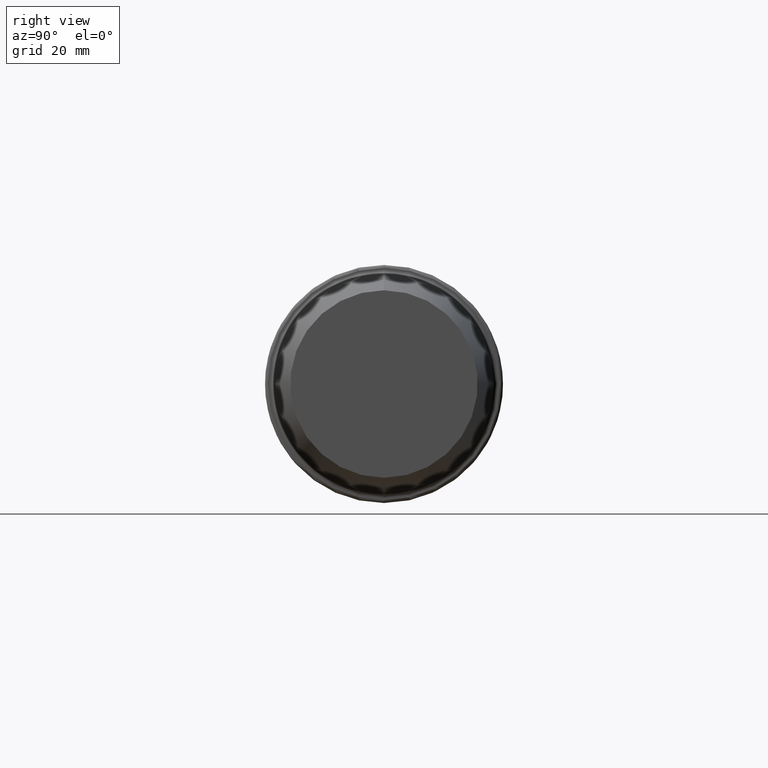
[diagram: clean part render]
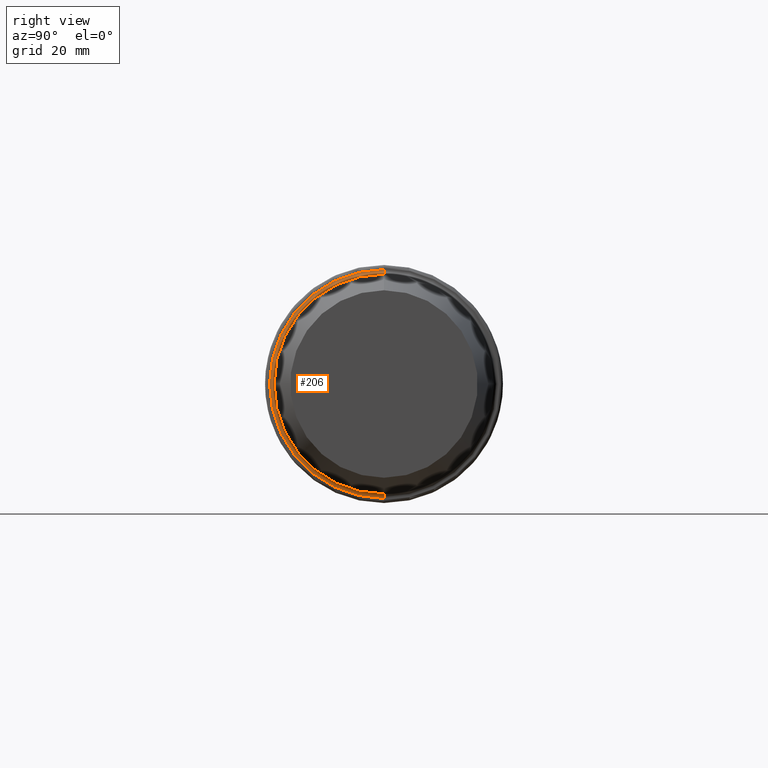
[diagram: same view with one face highlighted and labeled with its STEP entity id]
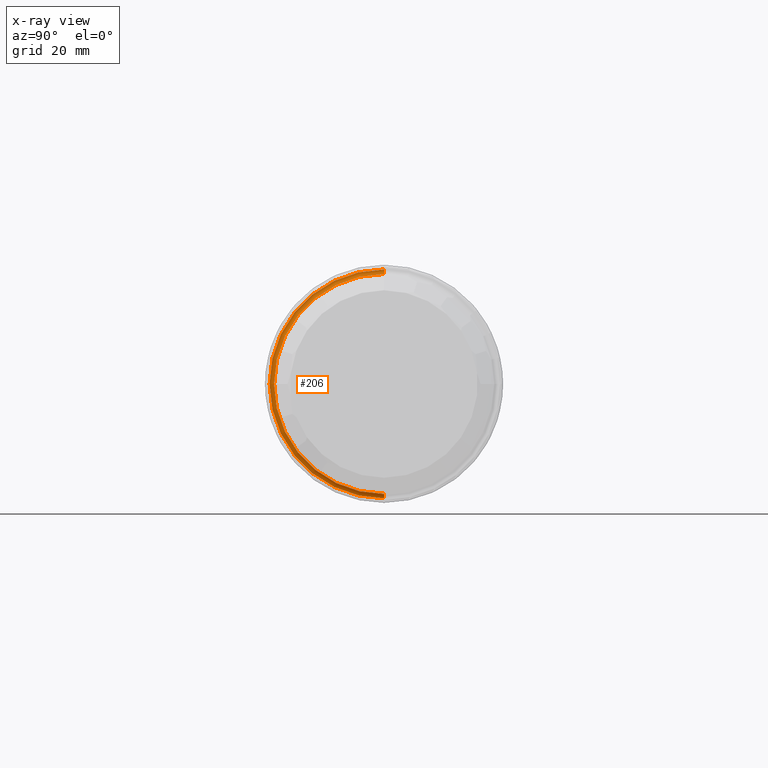
[diagram: x-ray of the same camera — body ghosted, the highlighted face saturated]
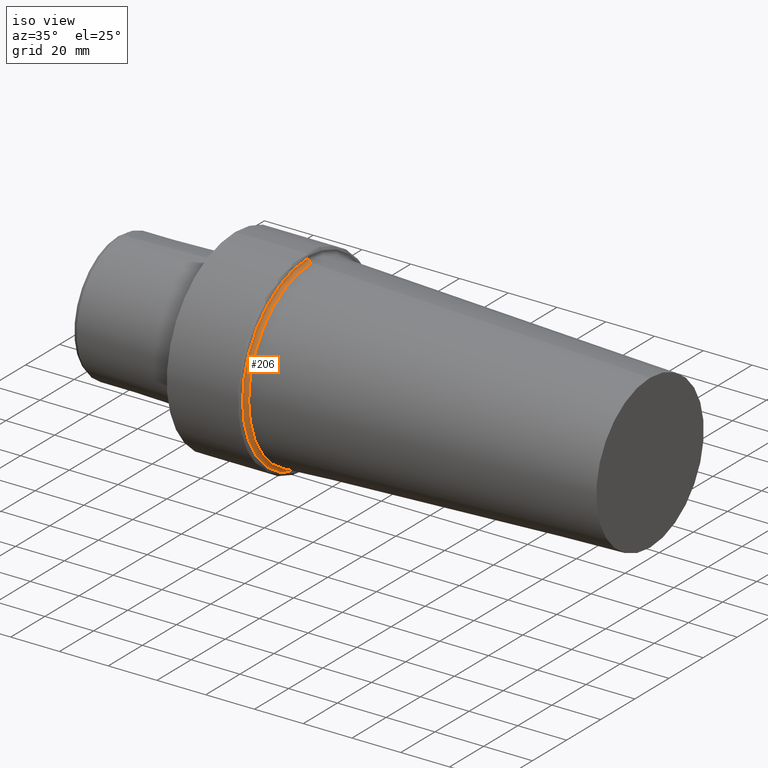
[diagram: same view with one face highlighted and labeled with its STEP entity id]
A machine part, right view. The second image highlights one B-rep face of the part: STEP entity #206.
The next image is the same camera in x-ray: the body ghosted, the highlighted face saturated — about 0% of this face is hidden behind the body in this view.
A second angle (iso view) of the same face is appended — the face is thin or edge-on in the first view.
In plain terms, the highlighted toroidal blend (fillet) surface has major radius 38.4423 mm and minor (blend) radius 1.5 mm.
Its self-contained STEP definition (entity closure, byte-faithful):
#18 = DIRECTION ( 'NONE',  ( 0.000000000000000000, 1.000000000000000000, 1.224646799147355919E-16 ) ) ;
#51 = DIRECTION ( 'NONE',  ( 0.000000000000000000, 0.000000000000000000, 1.000000000000000000 ) ) ;
#64 = CARTESIAN_POINT ( 'NONE',  ( 31.49999997056141510, 0.000000000000000000, 38.44230921983423599 ) ) ;
#65 = ORIENTED_EDGE ( 'NONE', *, *, #384, .F. ) ;
#96 = VERTEX_POINT ( 'NONE', #284 ) ;
#107 = VERTEX_POINT ( 'NONE', #110 ) ;
#110 = CARTESIAN_POINT ( 'NONE',  ( 31.44120067062139512, 0.000000000000000000, 36.94346211697936155 ) ) ;
#114 = DIRECTION ( 'NONE',  ( -1.000000000000000000, 0.000000000000000000, 0.000000000000000000 ) ) ;
#127 = FACE_OUTER_BOUND ( 'NONE', #137, .T. ) ;
#130 = CARTESIAN_POINT ( 'NONE',  ( 31.49999997056141510, 0.000000000000000000, 0.000000000000000000 ) ) ;
#132 = CARTESIAN_POINT ( 'NONE',  ( 29.99999997209141611, 0.000000000000000000, 0.000000000000000000 ) ) ;
#136 = DIRECTION ( 'NONE',  ( 0.000000000000000000, 0.000000000000000000, -1.000000000000000000 ) ) ;
#137 = EDGE_LOOP ( 'NONE', ( #422, #312, #174, #65 ) ) ;
#158 = CIRCLE ( 'NONE', #506, 38.44230921545053548 ) ;
#168 = AXIS2_PLACEMENT_3D ( 'NONE', #390, #18, #478 ) ;
#174 = ORIENTED_EDGE ( 'NONE', *, *, #482, .T. ) ;
#194 = CIRCLE ( 'NONE', #466, 36.94346211697936155 ) ;
#206 = ADVANCED_FACE ( 'NONE', ( #127 ), #209, .F. ) ;
#209 = TOROIDAL_SURFACE ( 'NONE', #516, 38.44230921983423599, 1.499999998469999873 ) ;
#214 = DIRECTION ( 'NONE',  ( -1.000000000000000000, 0.000000000000000000, 0.000000000000000000 ) ) ;
#217 = CIRCLE ( 'NONE', #428, 1.499999998470002982 ) ;
#229 = VERTEX_POINT ( 'NONE', #296 ) ;
#246 = EDGE_CURVE ( 'NONE', #96, #380, #158, .T. ) ;
#264 = DIRECTION ( 'NONE',  ( 0.000000000000000000, -1.000000000000000000, 0.000000000000000000 ) ) ;
#284 = CARTESIAN_POINT ( 'NONE',  ( 29.99999997209141611, 4.707825093521852864E-15, -38.44230921764238218 ) ) ;
#296 = CARTESIAN_POINT ( 'NONE',  ( 31.44120067062139512, 4.524269263098024593E-15, -36.94346211697936155 ) ) ;
#312 = ORIENTED_EDGE ( 'NONE', *, *, #434, .T. ) ;
#315 = CARTESIAN_POINT ( 'NONE',  ( 31.44120067062139512, 0.000000000000000000, 0.000000000000000000 ) ) ;
#349 = CARTESIAN_POINT ( 'NONE',  ( 29.99999997209141611, 0.000000000000000000, 38.44230921764238218 ) ) ;
#355 = CIRCLE ( 'NONE', #168, 1.499999998470002982 ) ;
#380 = VERTEX_POINT ( 'NONE', #349 ) ;
#384 = EDGE_CURVE ( 'NONE', #380, #107, #217, .T. ) ;
#390 = CARTESIAN_POINT ( 'NONE',  ( 31.49999997056141510, 4.707825093790277776E-15, -38.44230921983423599 ) ) ;
#421 = DIRECTION ( 'NONE',  ( 0.000000000000000000, 0.000000000000000000, 1.000000000000000000 ) ) ;
#422 = ORIENTED_EDGE ( 'NONE', *, *, #246, .F. ) ;
#428 = AXIS2_PLACEMENT_3D ( 'NONE', #64, #264, #136 ) ;
#434 = EDGE_CURVE ( 'NONE', #96, #229, #355, .T. ) ;
#438 = DIRECTION ( 'NONE',  ( 0.000000000000000000, 0.000000000000000000, 1.000000000000000000 ) ) ;
#461 = DIRECTION ( 'NONE',  ( -1.000000000000000000, 0.000000000000000000, 0.000000000000000000 ) ) ;
#466 = AXIS2_PLACEMENT_3D ( 'NONE', #315, #114, #438 ) ;
#478 = DIRECTION ( 'NONE',  ( 0.000000000000000000, -1.224646799147355426E-16, 1.000000000000000000 ) ) ;
#482 = EDGE_CURVE ( 'NONE', #229, #107, #194, .T. ) ;
#506 = AXIS2_PLACEMENT_3D ( 'NONE', #132, #461, #51 ) ;
#516 = AXIS2_PLACEMENT_3D ( 'NONE', #130, #214, #421 ) ;